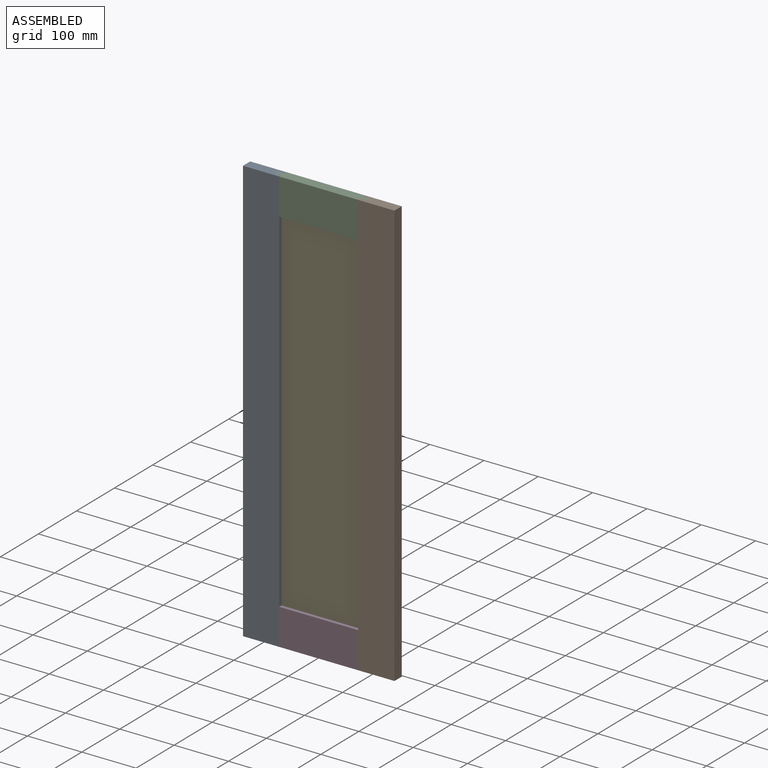
[diagram: assembled view]
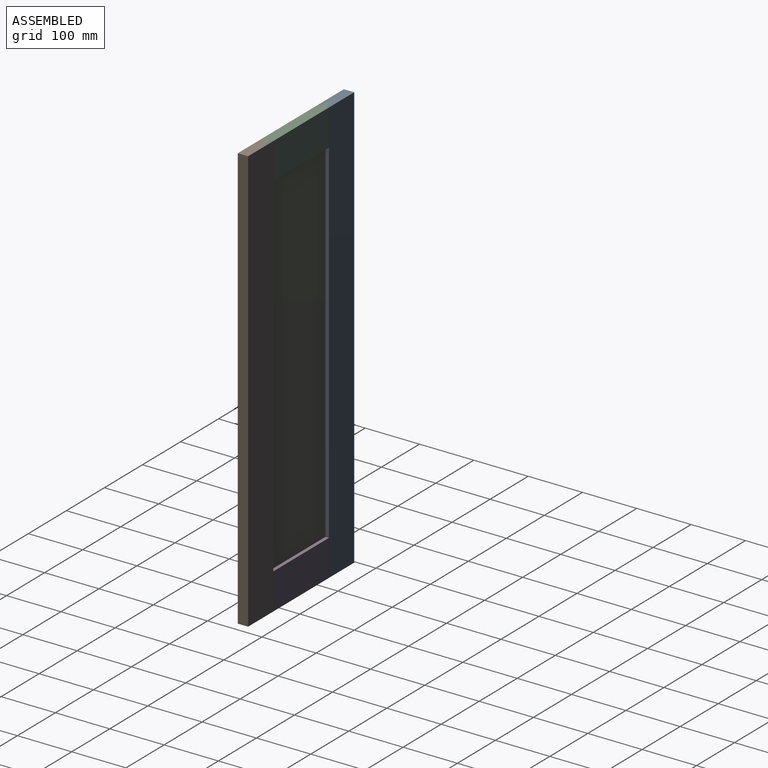
[diagram: assembled view, second angle]
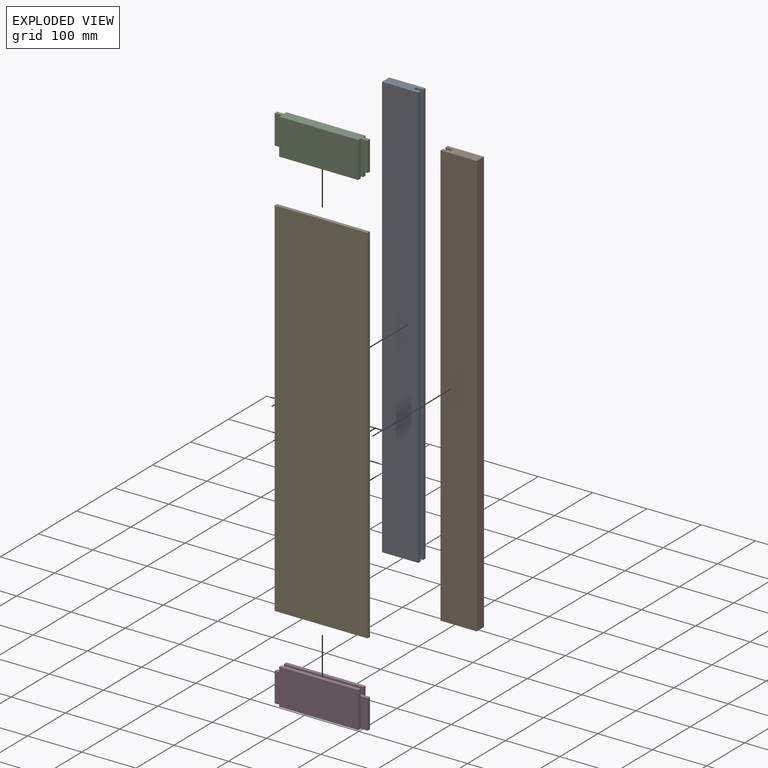
[diagram: exploded view]
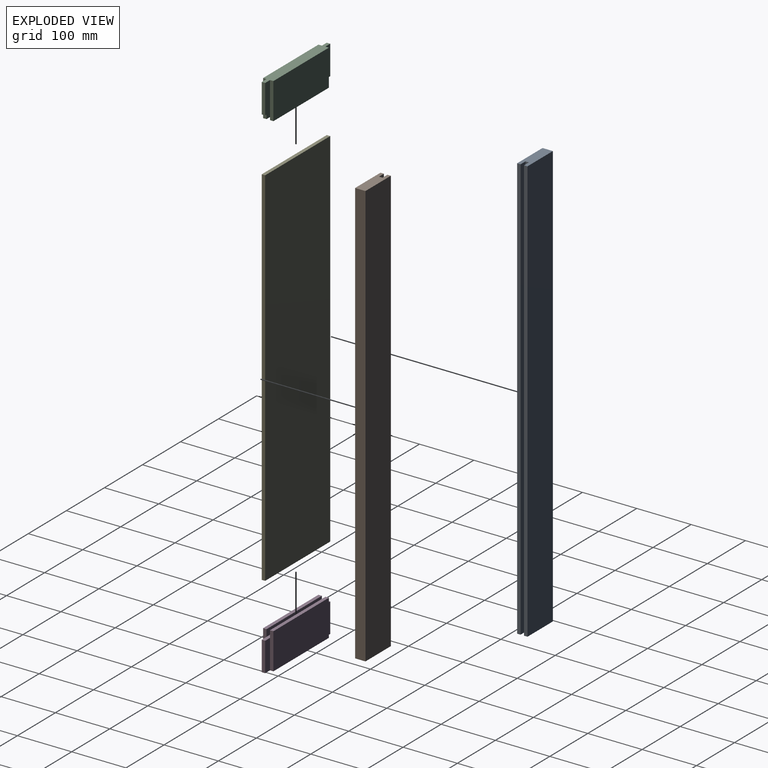
[diagram: exploded view, second angle]
ASSEMBLY  parts=5 mates=4
PART A: 10 faces, bbox 66.7x19.1x782.6 mm
  f0: plane 782.64x6.35mm, normal (1,0,0), area 4969.7mm2, adj f1,f3,f6,f7
  f1: plane 66.68x19.05mm, normal (0,0,1), area 1189.5mm2, adj f0,f2,f4,f5,f6,f7,f8,f9
  f2: plane 782.64x19.05mm, normal (-1,0,0), area 14909.2mm2, adj f1,f3,f5,f6
  f3: plane 66.68x19.05mm, normal (0,0,-1), area 1189.5mm2, adj f0,f2,f4,f5,f6,f7,f8,f9
  f4: plane 782.64x6.35mm, normal (1,0,0), area 4969.7mm2, adj f1,f3,f5,f8
  f5: plane 782.64x66.68mm, normal (0,-1,0), area 52182.4mm2, adj f1,f2,f3,f4
  f6: plane 782.64x66.68mm, normal (0,1,0), area 52182.4mm2, adj f0,f1,f2,f3
  f7: plane 782.64x12.7mm, normal (0,-1,0), area 9939.5mm2, adj f0,f1,f3,f9
  f8: plane 782.64x12.7mm, normal (0,1,0), area 9939.5mm2, adj f1,f3,f4,f9
  f9: plane 782.64x6.35mm, normal (1,0,0), area 4969.7mm2, adj f1,f3,f7,f8
PART B: same geometry as A
PART C: 18 faces, bbox 171.1x19.1x66.7 mm
  f0: plane 145.65x6.35mm, normal (0,0,1), area 924.9mm2, adj f7,f9,f10,f16
  f1: plane 53.98x12.7mm, normal (0,1,0), area 685.5mm2, adj f2,f5,f8,f17
  f2: plane 53.98x6.35mm, normal (-1,0,0), area 342.7mm2, adj f1,f8,f12,f17
  f3: plane 53.98x12.7mm, normal (0,-1,0), area 685.5mm2, adj f8,f9,f14,f17
  f4: plane 66.68x6.35mm, normal (1,0,0), area 423.4mm2, adj f6,f8,f11,f13,f15
  f5: plane 66.68x6.35mm, normal (-1,0,0), area 423.4mm2, adj f1,f6,f8,f11,f15
  f6: plane 145.65x6.35mm, normal (0,0,1), area 924.9mm2, adj f4,f5,f11,f15
  f7: plane 66.68x6.35mm, normal (-1,0,0), area 423.4mm2, adj f0,f8,f10,f12,f16
  f8: plane 171.05x19.05mm, normal (0,0,-1), area 2936mm2, adj f1,f2,f3,f4,f5,f7,f9,f10
  f9: plane 66.68x6.35mm, normal (1,0,0), area 423.4mm2, adj f0,f3,f8,f10,f16
  f10: plane 145.65x66.68mm, normal (0,-1,0), area 9711.4mm2, adj f0,f7,f8,f9
  f11: plane 145.65x66.68mm, normal (0,1,0), area 9711.4mm2, adj f4,f5,f6,f8
  f12: plane 53.98x12.7mm, normal (0,-1,0), area 685.5mm2, adj f2,f7,f8,f17
  f13: plane 53.98x12.7mm, normal (0,1,0), area 685.5mm2, adj f4,f8,f14,f17
  f14: plane 53.98x6.35mm, normal (1,0,0), area 342.7mm2, adj f3,f8,f13,f17
  f15: plane 145.65x12.7mm, normal (0,-1,0), area 1849.8mm2, adj f4,f5,f6,f17
  f16: plane 145.65x12.7mm, normal (0,1,0), area 1849.8mm2, adj f0,f7,f9,f17
  f17: plane 171.05x6.35mm, normal (0,0,1), area 1086.2mm2, adj f1,f2,f3,f12,f13,f14,f15,f16
PART D: same geometry as C
PART E: 6 faces, bbox 171.1x6.4x674.7 mm
  f0: plane 674.69x171.05mm, normal (0,1,0), area 115407.4mm2, adj f1,f2,f3,f4
  f1: plane 674.69x6.35mm, normal (-1,0,0), area 4284.3mm2, adj f0,f2,f4,f5
  f2: plane 171.05x6.35mm, normal (0,0,-1), area 1086.2mm2, adj f0,f1,f3,f5
  f3: plane 674.69x6.35mm, normal (1,0,0), area 4284.3mm2, adj f0,f2,f4,f5
  f4: plane 171.05x6.35mm, normal (0,0,1), area 1086.2mm2, adj f0,f1,f3,f5
  f5: plane 674.69x171.05mm, normal (0,-1,0), area 115407.4mm2, adj f1,f2,f3,f4
PLACE A at identity fixed
PLACE B rot(axis=(0,1,0),180deg) t=(279,0,782.64)mm
PLACE C rot(axis=(0,1,0),180deg) t=(334.24,0,782.64)mm
PLACE D t=(-55.24,0,0)mm
PLACE E t=(-55.24,0,0)mm
MATE fastened D.f10 <-> B.f5  axis (0,-1,0) through (212.33,-19.05,0)mm
MATE fastened A.f5 <-> D.f10  axis (0,-1,0) through (66.68,-19.05,0)mm
MATE fastened A.f5 <-> C.f10  axis (0,-1,0) through (66.68,-19.05,782.64)mm
MATE fastened E.f5 <-> D.f12  axis (0,-1,0) through (53.98,-12.7,53.97)mm
